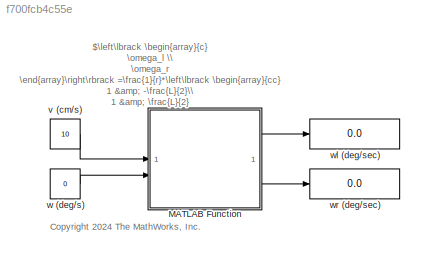
MODEL slx_f700fcb4c55e
KIND model
CONFIG AbsTol = auto
CONFIG EnableMultiTasking = on
CONFIG FixedStep = TS
CONFIG MaxStep = auto
CONFIG MinStep = auto
CONFIG PostLoadFcn = paramsBasicKinematics
CONFIG RelTol = 1e-3
CONFIG SampleTimeConstraint = Unconstrained
CONFIG SolverName = FixedStepDiscrete
CONFIG StartTime = 0.0
CONFIG StopTime = 1
WORKSPACE source: mxarray member
WORKSPACE Ia = 0.1
WORKSPACE Id = 0.25
WORKSPACE Pa = 5
WORKSPACE Pd = 9
WORKSPACE TS = 0.01
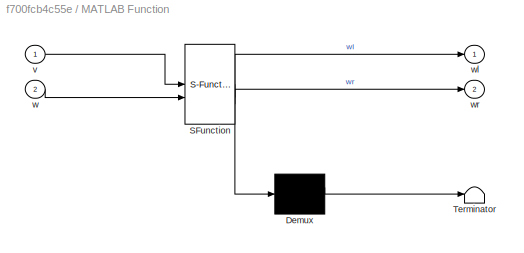
BLOCK [SubSystem] MATLAB Function
  ErrorFcn = Stateflow.Translate.translate
  PermitHierarchicalResolution = ExplicitOnly
  SFBlockType = MATLAB Function
  TreatAsAtomicUnit = on
BLOCK [Demux] MATLAB Function/ Demux 
  Outputs = 1
BLOCK [S-Function] MATLAB Function/ SFunction 
  EnableBusSupport = on
  FunctionName = sf_sfun
  PortCounts = [2 3]
  SFcnIsStateOwnerBlock = off
  SFunctionDeploymentMode = off
  Tag = Stateflow S-Function 2
BLOCK [Terminator] MATLAB Function/ Terminator 
BLOCK [Inport] MATLAB Function/v
BLOCK [Inport] MATLAB Function/w
  Port = 2
BLOCK [Outport] MATLAB Function/wl
BLOCK [Outport] MATLAB Function/wr
  Port = 2
BLOCK [Constant] v (cm//s) 
  Value = 10
BLOCK [Constant] w (deg//s)
  Value = 0
BLOCK [Display] wl (deg//sec)
  Decimation = 1
BLOCK [Display] wr (deg//sec)
  Decimation = 1
ANNOTATION (root): <copyright redacted>
ANNOTATION (root): $\left\lbrack \begin{array}{c} \omega_l \\ \omega_r \end{array}\right\rbrack =\frac{1}{r}*\left\lbrack \begin{array}{cc} 1 & -\frac{L}{2}\\ 1 & \frac{L}{2} \end{array}\right\rbrack *\left\lbrack \begin{array}{c} \upsilon \\ \omega \end{array}\right\rbrack$
LINE MATLAB Function:1 -> wl (deg//sec):1
LINE MATLAB Function:2 -> wr (deg//sec):1
LINE v (cm//s) :1 -> MATLAB Function:1
LINE w (deg//s):1 -> MATLAB Function:2
CHART MATLAB Function states=1 transitions=1
  STATE_LABEL 'eML_blk_kernel()'
  STATE_LABEL 'SCRIPT:\nfunction [wl,wr] = fcn(v,w)\n\n%FCN Calculates wheel speeds wl and wr\n%   v: Rover velocity\n%   w: Rate of rotation\n\nL = 8.8; % Length\nr = 4.5; % Wheel radius\nw = w*pi/180; \n\nwheelVels = 1/r*[1 -L/2; 1 L/2] * [v;w] *180/pi;\nwl = wheelVels(1);\nwr = wheelVels(2);\n    \nend'
CHART  states=0 transitions=0
